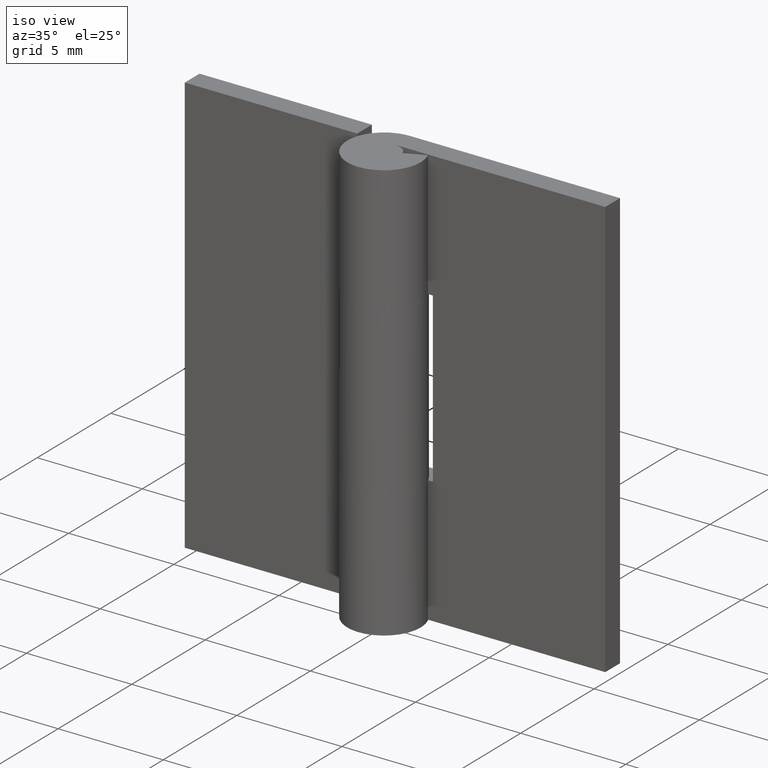
[diagram: clean part render]
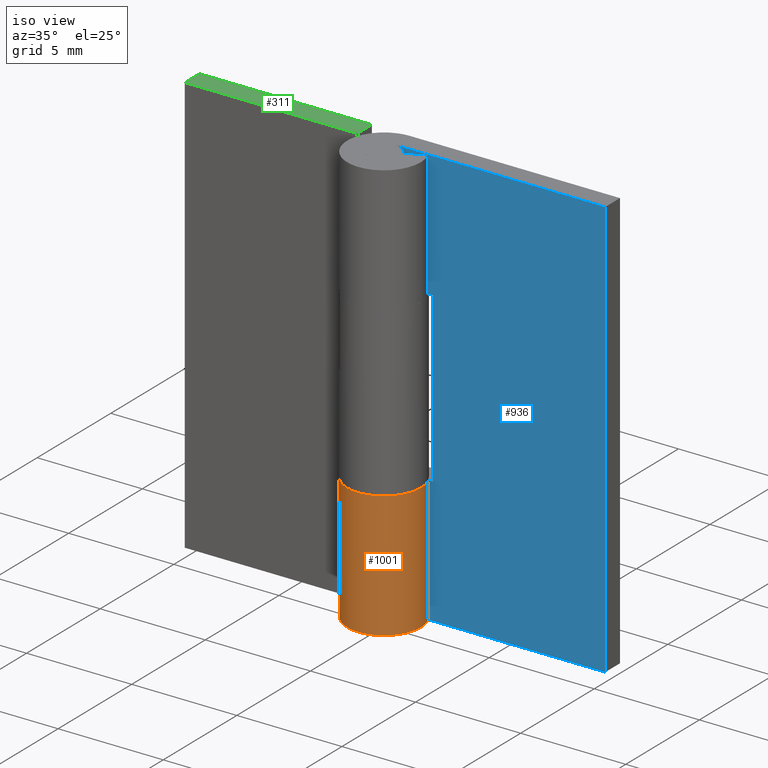
[diagram: same view with three faces highlighted in distinct colors, each labeled with its STEP entity id]
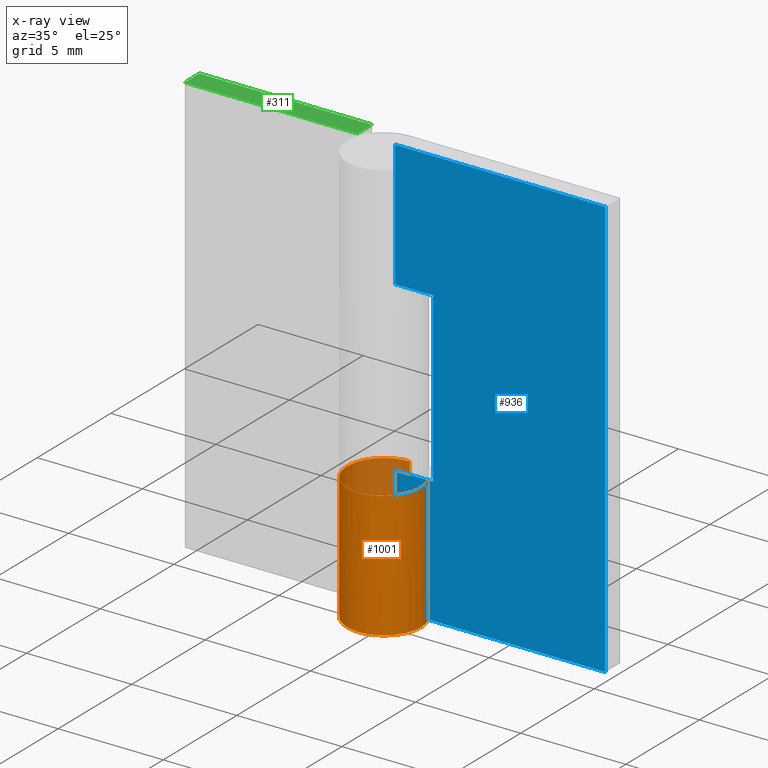
[diagram: x-ray of the same camera — body ghosted, the three highlighted faces saturated]
A machine part, iso view with three faces highlighted in distinct colors.
The next image is the same camera in x-ray (body ghosted, the three faces saturated) — at least one of them is partly hidden behind the body in this view.
Their STEP definitions:

[orange] entity #1001 — the highlighted face is a freeform B-spline surface patch.
#512=CARTESIAN_POINT('',(-3.214592E-016,1.750000000000000,6.0));
#513=VERTEX_POINT('',#512);
#519=CARTESIAN_POINT('',(1.603901493234545,0.700000000000000,6.0));
#520=VERTEX_POINT('',#519);
#521=CARTESIAN_POINT('',(0.0,1.750000000000000,6.0));
#522=CARTESIAN_POINT('',(-1.304280203994645,1.750000000000000,6.0));
#523=CARTESIAN_POINT('',(-1.677016894855357,0.500114321300337,6.0));
#524=CARTESIAN_POINT('',(-2.049753585716069,-0.749771357399326,6.0));
#525=CARTESIAN_POINT('',(-0.958514475634041,-1.464155046434633,6.0));
#526=CARTESIAN_POINT('',(0.132724634447988,-2.178538735469939,6.0));
#527=CARTESIAN_POINT('',(1.129169104640194,-1.336965643958760,6.0));
#528=CARTESIAN_POINT('',(2.125613574832403,-0.495392552447581,6.0));
#529=CARTESIAN_POINT('',(1.603901493234544,0.700000000000001,6.0));
#537=(BOUNDED_CURVE()B_SPLINE_CURVE(2,(#521,#522,#523,#524,#525,#526,#527,#528,#529),.UNSPECIFIED.,.F.,.U.)B_SPLINE_CURVE_WITH_KNOTS((3,2,2,2,3),(0.0,0.250000000000000,0.500000000000000,0.750000000000000,1.0),.UNSPECIFIED.)CURVE()GEOMETRIC_REPRESENTATION_ITEM()RATIONAL_B_SPLINE_CURVE((1.0,0.801804094580347,1.0,0.801804094580347,1.0,0.801804094580347,1.0,0.801804094580347,1.0))REPRESENTATION_ITEM(''));
#538=EDGE_CURVE('',#513,#520,#537,.T.);
#672=CARTESIAN_POINT('',(-3.214592E-016,1.750000000000000,0.0));
#673=VERTEX_POINT('',#672);
#716=CARTESIAN_POINT('',(1.603901493234545,0.700000000000000,0.0));
#717=VERTEX_POINT('',#716);
#723=CARTESIAN_POINT('',(1.603901493234544,0.700000000000000,0.0));
#724=CARTESIAN_POINT('',(2.125613574832401,-0.495392552447580,0.0));
#725=CARTESIAN_POINT('',(1.129169104640195,-1.336965643958759,0.0));
#726=CARTESIAN_POINT('',(0.132724634447988,-2.178538735469940,0.0));
#727=CARTESIAN_POINT('',(-0.958514475634041,-1.464155046434632,0.0));
#728=CARTESIAN_POINT('',(-2.049753585716069,-0.749771357399327,0.0));
#729=CARTESIAN_POINT('',(-1.677016894855357,0.500114321300335,0.0));
#730=CARTESIAN_POINT('',(-1.304280203994646,1.750000000000000,0.0));
#731=CARTESIAN_POINT('',(0.0,1.750000000000000,0.0));
#739=(BOUNDED_CURVE()B_SPLINE_CURVE(2,(#723,#724,#725,#726,#727,#728,#729,#730,#731),.UNSPECIFIED.,.F.,.U.)B_SPLINE_CURVE_WITH_KNOTS((3,2,2,2,3),(0.0,0.250000000000000,0.500000000000000,0.750000000000000,1.0),.UNSPECIFIED.)CURVE()GEOMETRIC_REPRESENTATION_ITEM()RATIONAL_B_SPLINE_CURVE((1.0,0.801804094580347,1.0,0.801804094580347,1.0,0.801804094580347,1.0,0.801804094580347,1.0))REPRESENTATION_ITEM(''));
#740=EDGE_CURVE('',#717,#673,#739,.T.);
#866=CARTESIAN_POINT('',(1.603901493234545,0.700000000000000,6.0));
#867=CARTESIAN_POINT('',(1.603901493234545,0.700000000000000,0.0));
#868=QUASI_UNIFORM_CURVE('',1,(#866,#867),.UNSPECIFIED.,.F.,.U.);
#869=EDGE_CURVE('',#520,#717,#868,.T.);
#963=CARTESIAN_POINT('',(-3.214592E-016,1.750000000000000,6.0));
#964=CARTESIAN_POINT('',(-3.214592E-016,1.750000000000000,0.0));
#965=QUASI_UNIFORM_CURVE('',1,(#963,#964),.UNSPECIFIED.,.F.,.U.);
#966=EDGE_CURVE('',#513,#673,#965,.T.);
#973=CARTESIAN_POINT('',(0.058687691979964,1.749015653106073,6.150000000000001));
#974=CARTESIAN_POINT('',(0.058687691979964,1.749015653106073,-0.153750000000001));
#975=CARTESIAN_POINT('',(-2.025707996112706,1.818956920864258,6.150000000000001));
#976=CARTESIAN_POINT('',(-2.025707996112706,1.818956920864258,-0.153750000000001));
#977=CARTESIAN_POINT('',(-1.732635186082370,-0.245917286804544,6.150000000000001));
#978=CARTESIAN_POINT('',(-1.732635186082370,-0.245917286804544,-0.153750000000001));
#979=CARTESIAN_POINT('',(-1.439562376052033,-2.310791494473346,6.150000000000001));
#980=CARTESIAN_POINT('',(-1.439562376052033,-2.310791494473346,-0.153750000000001));
#981=CARTESIAN_POINT('',(0.543050193269648,-1.663609475685262,6.150000000000001));
#982=CARTESIAN_POINT('',(0.543050193269648,-1.663609475685262,-0.153750000000001));
#983=CARTESIAN_POINT('',(2.525662762591329,-1.016427456897179,6.150000000000001));
#984=CARTESIAN_POINT('',(2.525662762591329,-1.016427456897179,-0.153750000000001));
#985=CARTESIAN_POINT('',(1.544035833196472,0.823682794408911,6.150000000000001));
#986=CARTESIAN_POINT('',(1.544035833196472,0.823682794408911,-0.153750000000001));
#994=(BOUNDED_SURFACE()B_SPLINE_SURFACE(1,2,((#973,#975,#977,#979,#981,#983,#985),(#974,#976,#978,#980,#982,#984,#986)),.UNSPECIFIED.,.F.,.F.,.U.)B_SPLINE_SURFACE_WITH_KNOTS((2,2),(3,2,2,3),(0.0,6.303750000000002),(0.0,3.264153607084988,6.528307214169977,9.792460821254965),.UNSPECIFIED.)GEOMETRIC_REPRESENTATION_ITEM()RATIONAL_B_SPLINE_SURFACE(((1.0,0.642787609686539,1.0,0.642787609686539,1.0,0.642787609686539,1.0),(1.0,0.642787609686539,1.0,0.642787609686539,1.0,0.642787609686539,1.0)))REPRESENTATION_ITEM('')SURFACE());
#995=ORIENTED_EDGE('',*,*,#869,.F.);
#996=ORIENTED_EDGE('',*,*,#538,.F.);
#997=ORIENTED_EDGE('',*,*,#966,.T.);
#998=ORIENTED_EDGE('',*,*,#740,.F.);
#999=EDGE_LOOP('',(#995,#996,#997,#998));
#1000=FACE_OUTER_BOUND('',#999,.T.);
#1001=ADVANCED_FACE('',(#1000),#994,.T.);

[blue] entity #936 — the highlighted face is a freeform B-spline surface patch.
#496=CARTESIAN_POINT('',(0.0,0.750000000000000,6.0));
#497=VERTEX_POINT('',#496);
#498=CARTESIAN_POINT('',(1.800003000000000,0.750000000000028,6.0));
#499=VERTEX_POINT('',#498);
#500=CARTESIAN_POINT('',(0.0,0.750000000000000,6.0));
#501=CARTESIAN_POINT('',(1.800003000000000,0.750000000000028,6.0));
#502=QUASI_UNIFORM_CURVE('',1,(#500,#501),.UNSPECIFIED.,.F.,.U.);
#503=EDGE_CURVE('',#497,#499,#502,.T.);
#574=CARTESIAN_POINT('',(1.800003000000000,0.750000000000028,14.0));
#575=VERTEX_POINT('',#574);
#576=CARTESIAN_POINT('',(1.800003000000000,0.750000000000028,6.0));
#577=CARTESIAN_POINT('',(1.800003000000000,0.750000000000028,14.0));
#578=QUASI_UNIFORM_CURVE('',1,(#576,#577),.UNSPECIFIED.,.F.,.U.);
#579=EDGE_CURVE('',#499,#575,#578,.T.);
#602=CARTESIAN_POINT('',(0.0,0.750000000000000,14.0));
#603=VERTEX_POINT('',#602);
#604=CARTESIAN_POINT('',(1.800003000000000,0.750000000000028,14.0));
#605=CARTESIAN_POINT('',(0.0,0.750000000000000,14.0));
#606=QUASI_UNIFORM_CURVE('',1,(#604,#605),.UNSPECIFIED.,.F.,.U.);
#607=EDGE_CURVE('',#575,#603,#606,.T.);
#681=CARTESIAN_POINT('',(10.0,0.750000000000000,0.0));
#682=VERTEX_POINT('',#681);
#688=CARTESIAN_POINT('',(0.0,0.750000000000000,0.0));
#689=VERTEX_POINT('',#688);
#690=CARTESIAN_POINT('',(10.0,0.750000000000000,0.0));
#691=CARTESIAN_POINT('',(0.0,0.750000000000000,0.0));
#692=QUASI_UNIFORM_CURVE('',1,(#690,#691),.UNSPECIFIED.,.F.,.U.);
#693=EDGE_CURVE('',#682,#689,#692,.T.);
#787=CARTESIAN_POINT('',(0.0,0.750000000000000,20.0));
#788=VERTEX_POINT('',#787);
#808=CARTESIAN_POINT('',(10.0,0.750000000000000,20.0));
#809=VERTEX_POINT('',#808);
#810=CARTESIAN_POINT('',(10.0,0.750000000000000,20.0));
#811=CARTESIAN_POINT('',(0.0,0.750000000000000,20.0));
#812=QUASI_UNIFORM_CURVE('',1,(#810,#811),.UNSPECIFIED.,.F.,.U.);
#813=EDGE_CURVE('',#809,#788,#812,.T.);
#902=CARTESIAN_POINT('',(0.0,0.750000000000000,6.0));
#903=CARTESIAN_POINT('',(0.0,0.750000000000000,0.0));
#904=QUASI_UNIFORM_CURVE('',1,(#902,#903),.UNSPECIFIED.,.F.,.U.);
#905=EDGE_CURVE('',#497,#689,#904,.T.);
#913=CARTESIAN_POINT('',(-0.499499980618060,0.750000000000000,20.998999961236120));
#914=CARTESIAN_POINT('',(-0.499499980618060,0.750000000000000,-0.999000497677922));
#915=CARTESIAN_POINT('',(10.499500248838959,0.750000000000000,20.998999961236120));
#916=CARTESIAN_POINT('',(10.499500248838959,0.750000000000000,-0.999000497677922));
#917=B_SPLINE_SURFACE_WITH_KNOTS('',1,1,((#913,#915),(#914,#916)),.UNSPECIFIED.,.F.,.F.,.U.,(2,2),(2,2),(0.0,21.998000458914039),(0.0,10.999000229457019),.UNSPECIFIED.);
#918=ORIENTED_EDGE('',*,*,#607,.F.);
#919=ORIENTED_EDGE('',*,*,#579,.F.);
#920=ORIENTED_EDGE('',*,*,#503,.F.);
#921=ORIENTED_EDGE('',*,*,#905,.T.);
#922=ORIENTED_EDGE('',*,*,#693,.F.);
#923=CARTESIAN_POINT('',(10.0,0.750000000000000,20.0));
#924=CARTESIAN_POINT('',(10.0,0.750000000000000,0.0));
#925=QUASI_UNIFORM_CURVE('',1,(#923,#924),.UNSPECIFIED.,.F.,.U.);
#926=EDGE_CURVE('',#809,#682,#925,.T.);
#927=ORIENTED_EDGE('',*,*,#926,.F.);
#928=ORIENTED_EDGE('',*,*,#813,.T.);
#929=CARTESIAN_POINT('',(0.0,0.750000000000000,20.0));
#930=CARTESIAN_POINT('',(0.0,0.750000000000000,14.0));
#931=QUASI_UNIFORM_CURVE('',1,(#929,#930),.UNSPECIFIED.,.F.,.U.);
#932=EDGE_CURVE('',#788,#603,#931,.T.);
#933=ORIENTED_EDGE('',*,*,#932,.T.);
#934=EDGE_LOOP('',(#918,#919,#920,#921,#922,#927,#928,#933));
#935=FACE_OUTER_BOUND('',#934,.T.);
#936=ADVANCED_FACE('',(#935),#917,.T.);

[green] entity #311 — the highlighted face is a freeform B-spline surface patch.
#234=CARTESIAN_POINT('',(-1.800003000000000,1.750000000000000,20.0));
#235=VERTEX_POINT('',#234);
#241=CARTESIAN_POINT('',(-1.800003000000000,0.750000000000028,20.0));
#242=VERTEX_POINT('',#241);
#243=CARTESIAN_POINT('',(-1.800003000000000,0.750000000000028,20.0));
#244=CARTESIAN_POINT('',(-1.800003000000000,1.750000000000000,20.0));
#245=QUASI_UNIFORM_CURVE('',1,(#243,#244),.UNSPECIFIED.,.F.,.U.);
#246=EDGE_CURVE('',#242,#235,#245,.T.);
#270=CARTESIAN_POINT('',(-10.0,0.750000000000000,20.0));
#271=VERTEX_POINT('',#270);
#277=CARTESIAN_POINT('',(-10.0,1.750000000000000,20.0));
#278=VERTEX_POINT('',#277);
#279=CARTESIAN_POINT('',(-10.0,0.750000000000000,20.0));
#280=CARTESIAN_POINT('',(-10.0,1.750000000000000,20.0));
#281=QUASI_UNIFORM_CURVE('',1,(#279,#280),.UNSPECIFIED.,.F.,.U.);
#282=EDGE_CURVE('',#271,#278,#281,.T.);
#292=CARTESIAN_POINT('',(-10.409589834256820,0.700050001938194,20.0));
#293=CARTESIAN_POINT('',(-1.390412945802126,0.700050001938194,20.0));
#294=CARTESIAN_POINT('',(-10.409589834256820,1.799950024883896,20.0));
#295=CARTESIAN_POINT('',(-1.390412945802126,1.799950024883896,20.0));
#296=B_SPLINE_SURFACE_WITH_KNOTS('',1,1,((#292,#294),(#293,#295)),.UNSPECIFIED.,.F.,.F.,.U.,(2,2),(2,2),(0.0,9.019176888454689),(0.041708334948495,0.958291687403247),.UNSPECIFIED.);
#297=ORIENTED_EDGE('',*,*,#246,.T.);
#298=CARTESIAN_POINT('',(-10.0,1.750000000000000,20.0));
#299=CARTESIAN_POINT('',(-1.800003000000000,1.750000000000000,20.0));
#300=QUASI_UNIFORM_CURVE('',1,(#298,#299),.UNSPECIFIED.,.F.,.U.);
#301=EDGE_CURVE('',#278,#235,#300,.T.);
#302=ORIENTED_EDGE('',*,*,#301,.F.);
#303=ORIENTED_EDGE('',*,*,#282,.F.);
#304=CARTESIAN_POINT('',(-1.800003000000000,0.750000000000028,20.0));
#305=CARTESIAN_POINT('',(-10.0,0.750000000000000,20.0));
#306=QUASI_UNIFORM_CURVE('',1,(#304,#305),.UNSPECIFIED.,.F.,.U.);
#307=EDGE_CURVE('',#242,#271,#306,.T.);
#308=ORIENTED_EDGE('',*,*,#307,.F.);
#309=EDGE_LOOP('',(#297,#302,#303,#308));
#310=FACE_OUTER_BOUND('',#309,.T.);
#311=ADVANCED_FACE('',(#310),#296,.T.);